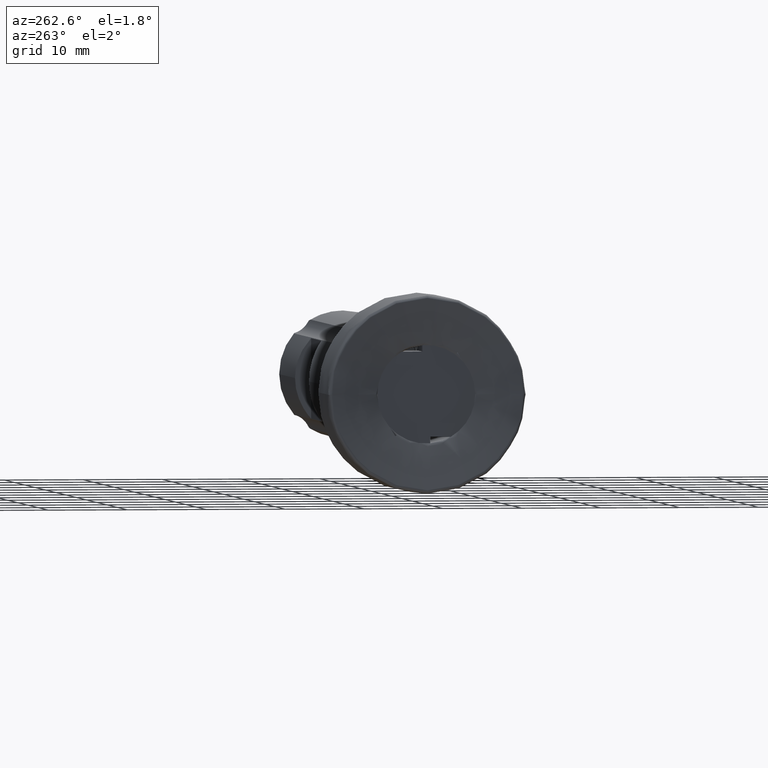
[diagram: clean part render]
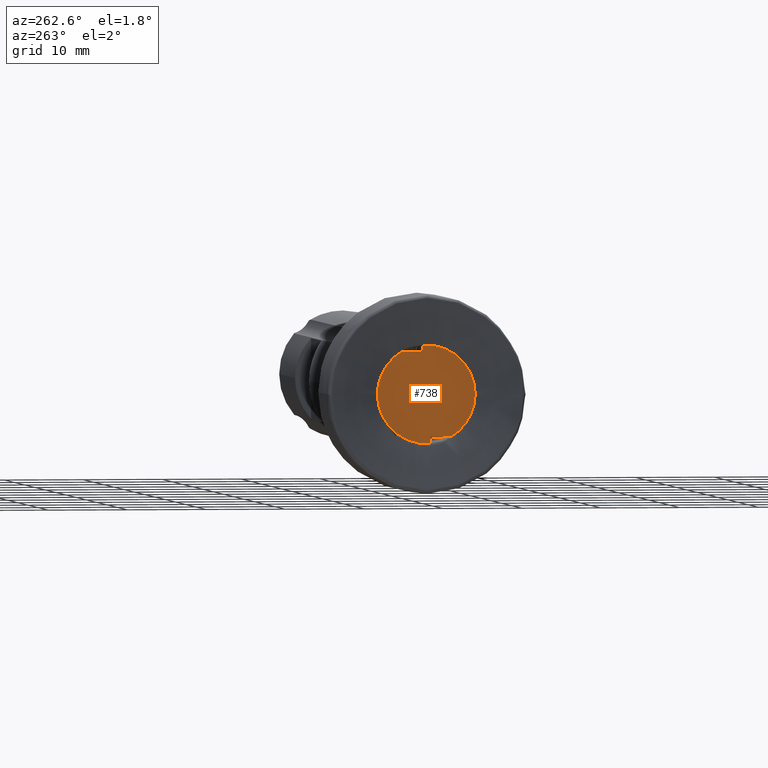
[diagram: same view with one face highlighted and labeled with its STEP entity id]
A machine part, auxiliary view. The second image highlights one B-rep face of the part: STEP entity #738.
In plain terms, the highlighted planar face has unit normal (-1, 0, 0).
Its self-contained STEP definition (entity closure, byte-faithful):
#21 = VERTEX_POINT ( 'NONE', #895 ) ;
#38 = CARTESIAN_POINT ( 'NONE',  ( -83.71849541999998200, 7.799999999999998900, 5.372618980000000400 ) ) ;
#40 = DIRECTION ( 'NONE',  ( -1.000000000000000000, 0.0000000000000000000, 0.0000000000000000000 ) ) ;
#86 = AXIS2_PLACEMENT_3D ( 'NONE', #1841, #40, #2139 ) ;
#198 = EDGE_CURVE ( 'NONE', #3109, #1861, #1111, .T. ) ;
#208 = EDGE_CURVE ( 'NONE', #1026, #1969, #2591, .T. ) ;
#227 = LINE ( 'NONE', #3262, #2403 ) ;
#266 = EDGE_CURVE ( 'NONE', #3646, #795, #1000, .T. ) ;
#316 = ORIENTED_EDGE ( 'NONE', *, *, #3676, .F. ) ;
#326 = CARTESIAN_POINT ( 'NONE',  ( -83.71849541999998200, 7.799999999999961600, -5.372618980000054600 ) ) ;
#358 = CARTESIAN_POINT ( 'NONE',  ( -83.71849541999998200, -6.202523669367071300, 0.0000000000000000000 ) ) ;
#488 = AXIS2_PLACEMENT_3D ( 'NONE', #2621, #841, #2918 ) ;
#565 = PLANE ( 'NONE',  #1109 ) ;
#570 = ORIENTED_EDGE ( 'NONE', *, *, #3713, .T. ) ;
#607 = CARTESIAN_POINT ( 'NONE',  ( -83.71849541999998200, 0.0000000000000000000, 0.0000000000000000000 ) ) ;
#738 = ADVANCED_FACE ( 'NONE', ( #2365 ), #565, .T. ) ;
#795 = VERTEX_POINT ( 'NONE', #2062 ) ;
#841 = DIRECTION ( 'NONE',  ( -1.000000000000000000, 0.0000000000000000000, 0.0000000000000000000 ) ) ;
#865 = DIRECTION ( 'NONE',  ( 0.0000000000000000000, 0.0000000000000000000, 1.000000000000000000 ) ) ;
#889 = LINE ( 'NONE', #1232, #3150 ) ;
#895 = CARTESIAN_POINT ( 'NONE',  ( -83.71849541999998200, 0.4990000000000000000, 5.372618980000000400 ) ) ;
#908 = DIRECTION ( 'NONE',  ( 0.0000000000000000000, 0.0000000000000000000, -1.000000000000000000 ) ) ;
#939 = EDGE_LOOP ( 'NONE', ( #316, #2741, #3125, #1467, #1356, #570, #2143, #2185 ) ) ;
#1000 = CIRCLE ( 'NONE', #488, 6.202523669367071300 ) ;
#1026 = VERTEX_POINT ( 'NONE', #3738 ) ;
#1109 = AXIS2_PLACEMENT_3D ( 'NONE', #3530, #2643, #865 ) ;
#1111 = CIRCLE ( 'NONE', #86, 6.202523669367071300 ) ;
#1193 = CARTESIAN_POINT ( 'NONE',  ( -83.71849541999998200, 3.099397548686226900, 5.372618980000000400 ) ) ;
#1207 = EDGE_CURVE ( 'NONE', #3463, #1969, #227, .T. ) ;
#1232 = CARTESIAN_POINT ( 'NONE',  ( -83.71849541999998200, 0.4990000000000003300, 0.0000000000000000000 ) ) ;
#1356 = ORIENTED_EDGE ( 'NONE', *, *, #208, .F. ) ;
#1445 = EDGE_CURVE ( 'NONE', #1861, #3463, #1774, .T. ) ;
#1467 = ORIENTED_EDGE ( 'NONE', *, *, #1207, .T. ) ;
#1489 = DIRECTION ( 'NONE',  ( 0.0000000000000000000, 6.982962677686266700E-015, 1.000000000000000000 ) ) ;
#1596 = DIRECTION ( 'NONE',  ( -1.000000000000000000, 0.0000000000000000000, 0.0000000000000000000 ) ) ;
#1602 = EDGE_CURVE ( 'NONE', #795, #21, #889, .T. ) ;
#1759 = AXIS2_PLACEMENT_3D ( 'NONE', #3388, #1596, #3705 ) ;
#1774 = CIRCLE ( 'NONE', #1858, 6.202523669367071300 ) ;
#1800 = VECTOR ( 'NONE', #2402, 1000.000000000000000 ) ;
#1841 = CARTESIAN_POINT ( 'NONE',  ( -83.71849541999998200, 0.0000000000000000000, 0.0000000000000000000 ) ) ;
#1858 = AXIS2_PLACEMENT_3D ( 'NONE', #607, #2682, #908 ) ;
#1861 = VERTEX_POINT ( 'NONE', #2606 ) ;
#1893 = LINE ( 'NONE', #38, #2091 ) ;
#1902 = CARTESIAN_POINT ( 'NONE',  ( -83.71849541999998200, -0.4990000000000434600, -6.182418529108050900 ) ) ;
#1969 = VERTEX_POINT ( 'NONE', #3035 ) ;
#2062 = CARTESIAN_POINT ( 'NONE',  ( -83.71849541999998200, 0.4990000000000003300, 6.182418529108061600 ) ) ;
#2091 = VECTOR ( 'NONE', #2148, 1000.000000000000000 ) ;
#2139 = DIRECTION ( 'NONE',  ( 0.0000000000000000000, 0.0000000000000000000, -1.000000000000000000 ) ) ;
#2143 = ORIENTED_EDGE ( 'NONE', *, *, #266, .T. ) ;
#2148 = DIRECTION ( 'NONE',  ( 0.0000000000000000000, -1.000000000000000000, 0.0000000000000000000 ) ) ;
#2185 = ORIENTED_EDGE ( 'NONE', *, *, #1602, .T. ) ;
#2365 = FACE_OUTER_BOUND ( 'NONE', #939, .T. ) ;
#2402 = DIRECTION ( 'NONE',  ( 0.0000000000000000000, 1.000000000000000000, -6.982962677686266700E-015 ) ) ;
#2403 = VECTOR ( 'NONE', #1489, 1000.000000000000000 ) ;
#2591 = LINE ( 'NONE', #326, #1800 ) ;
#2606 = CARTESIAN_POINT ( 'NONE',  ( -83.71849541999998200, 6.202523669367071300, -7.595900758326100200E-016 ) ) ;
#2621 = CARTESIAN_POINT ( 'NONE',  ( -83.71849541999998200, 0.0000000000000000000, 0.0000000000000000000 ) ) ;
#2643 = DIRECTION ( 'NONE',  ( -1.000000000000000000, 0.0000000000000000000, 0.0000000000000000000 ) ) ;
#2682 = DIRECTION ( 'NONE',  ( -1.000000000000000000, 0.0000000000000000000, 0.0000000000000000000 ) ) ;
#2741 = ORIENTED_EDGE ( 'NONE', *, *, #198, .T. ) ;
#2918 = DIRECTION ( 'NONE',  ( 0.0000000000000000000, 0.0000000000000000000, -1.000000000000000000 ) ) ;
#3035 = CARTESIAN_POINT ( 'NONE',  ( -83.71849541999998200, -0.4990000000000375200, -5.372618979999996800 ) ) ;
#3109 = VERTEX_POINT ( 'NONE', #1193 ) ;
#3125 = ORIENTED_EDGE ( 'NONE', *, *, #1445, .T. ) ;
#3150 = VECTOR ( 'NONE', #3308, 1000.000000000000000 ) ;
#3262 = CARTESIAN_POINT ( 'NONE',  ( -83.71849541999998200, -0.4990000000000003300, 5.795160726211832500E-014 ) ) ;
#3308 = DIRECTION ( 'NONE',  ( 0.0000000000000000000, -0.0000000000000000000, -1.000000000000000000 ) ) ;
#3316 = CIRCLE ( 'NONE', #1759, 6.202523669367071300 ) ;
#3388 = CARTESIAN_POINT ( 'NONE',  ( -83.71849541999998200, 0.0000000000000000000, 0.0000000000000000000 ) ) ;
#3463 = VERTEX_POINT ( 'NONE', #1902 ) ;
#3530 = CARTESIAN_POINT ( 'NONE',  ( -83.71849541999998200, 7.799999999999998900, 0.0000000000000000000 ) ) ;
#3646 = VERTEX_POINT ( 'NONE', #358 ) ;
#3676 = EDGE_CURVE ( 'NONE', #3109, #21, #1893, .T. ) ;
#3705 = DIRECTION ( 'NONE',  ( 0.0000000000000000000, 0.0000000000000000000, -1.000000000000000000 ) ) ;
#3713 = EDGE_CURVE ( 'NONE', #1026, #3646, #3316, .T. ) ;
#3738 = CARTESIAN_POINT ( 'NONE',  ( -83.71849541999998200, -3.099397548686257900, -5.372618979999978200 ) ) ;